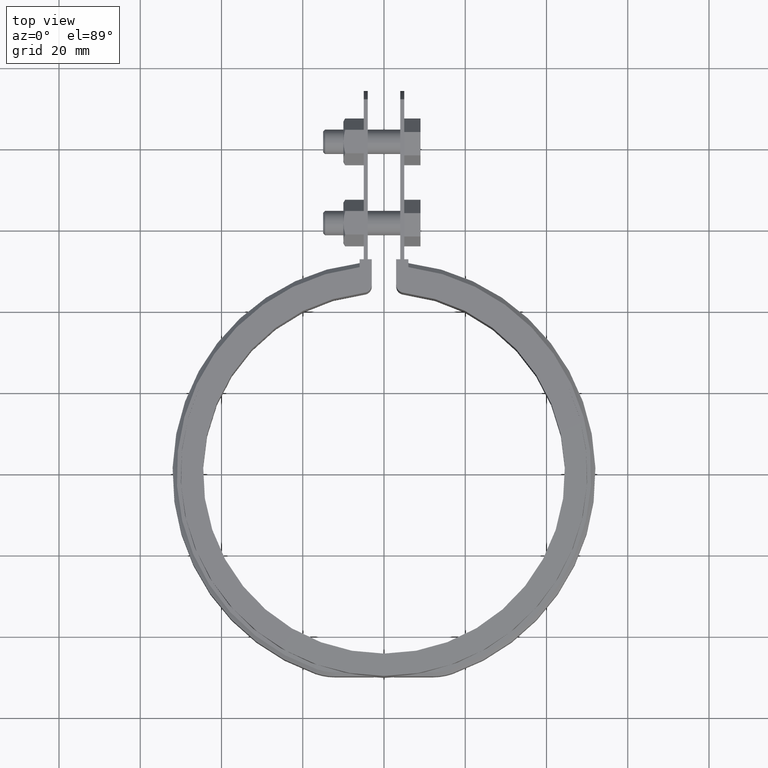
[diagram: clean part render]
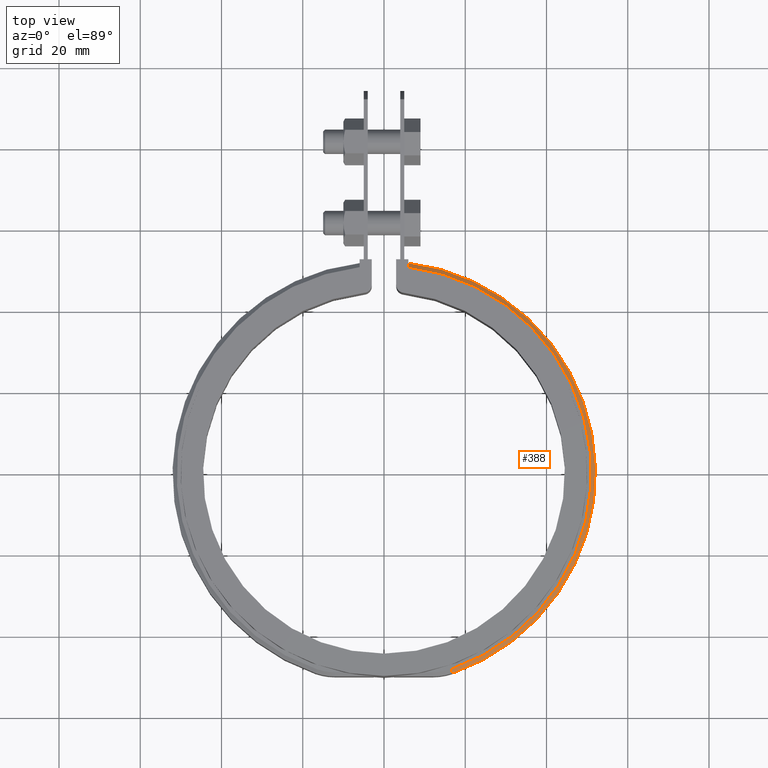
[diagram: same view with one face highlighted and labeled with its STEP entity id]
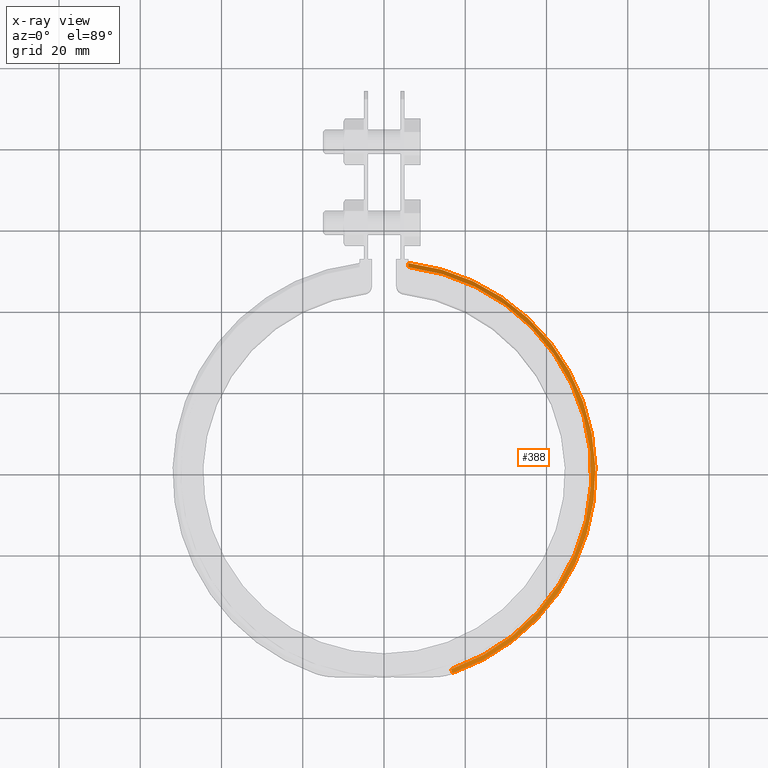
[diagram: x-ray of the same camera — body ghosted, the highlighted face saturated]
A machine part, top view. The second image highlights one B-rep face of the part: STEP entity #388.
The next image is the same camera in x-ray: the body ghosted, the highlighted face saturated — about 0% of this face is hidden behind the body in this view.
In plain terms, the highlighted conical surface has half-angle 45 deg.
Its self-contained STEP definition (entity closure, byte-faithful):
#388 = ADVANCED_FACE( '', ( #668 ), #669, .T. );
#668 = FACE_OUTER_BOUND( '', #1638, .T. );
#669 = CONICAL_SURFACE( '', #1639, 52.0500000000000, 0.785398163397452 );
#1638 = EDGE_LOOP( '', ( #3034, #3035, #3036, #3037 ) );
#1639 = AXIS2_PLACEMENT_3D( '', #3038, #3039, #3040 );
#3034 = ORIENTED_EDGE( '', *, *, #4258, .F. );
#3035 = ORIENTED_EDGE( '', *, *, #4259, .F. );
#3036 = ORIENTED_EDGE( '', *, *, #4260, .F. );
#3037 = ORIENTED_EDGE( '', *, *, #4261, .F. );
#3038 = CARTESIAN_POINT( '', ( 0.000000000000000, -1.38777878078145E-014, 7.50000000000000 ) );
#3039 = DIRECTION( '', ( 0.000000000000000, 0.000000000000000, -1.00000000000000 ) );
#3040 = DIRECTION( '', ( -1.00000000000000, 0.000000000000000, 0.000000000000000 ) );
#4258 = EDGE_CURVE( '', #4932, #4933, #4934, .T. );
#4259 = EDGE_CURVE( '', #4935, #4932, #4936, .T. );
#4260 = EDGE_CURVE( '', #4937, #4935, #4938, .T. );
#4261 = EDGE_CURVE( '', #4933, #4937, #4939, .F. );
#4932 = VERTEX_POINT( '', #7562 );
#4933 = VERTEX_POINT( '', #7563 );
#4934 = B_SPLINE_CURVE_WITH_KNOTS( '', 3, ( #7564, #7565, #7566, #7567 ), .UNSPECIFIED., .F., .F., ( 4, 4 ), ( 1.73472347597681E-018, 0.00141906111018388 ), .UNSPECIFIED. );
#4935 = VERTEX_POINT( '', #7568 );
#4936 = CIRCLE( '', #7569, 51.0500000000000 );
#4937 = VERTEX_POINT( '', #7570 );
#4938 = LINE( '', #7571, #7572 );
#4939 = CIRCLE( '', #7573, 52.0500000000000 );
#7562 = CARTESIAN_POINT( '', ( 6.00000000000001, 50.6961783569531, 8.49999999999999 ) );
#7563 = CARTESIAN_POINT( '', ( 6.00000000000001, 51.7030221553828, 7.50000000000001 ) );
#7564 = CARTESIAN_POINT( '', ( 6.00000000000001, 50.6961783569531, 8.50000000000000 ) );
#7565 = CARTESIAN_POINT( '', ( 6.00000000000001, 51.0318153765527, 8.16668924174696 ) );
#7566 = CARTESIAN_POINT( '', ( 6.00000000000001, 51.3674295438524, 7.83335547030038 ) );
#7567 = CARTESIAN_POINT( '', ( 6.00000000000001, 51.7030221553827, 7.50000000000000 ) );
#7568 = CARTESIAN_POINT( '', ( 16.5458912025651, -48.2942645074224, 8.50000000000000 ) );
#7569 = AXIS2_PLACEMENT_3D( '', #8510, #8511, #8512 );
#7570 = CARTESIAN_POINT( '', ( 16.8700026854753, -49.2402834008097, 7.50000000000001 ) );
#7571 = CARTESIAN_POINT( '', ( 16.8700026854753, -49.2402834008097, 7.50000000000000 ) );
#7572 = VECTOR( '', #8513, 1000.00000000000 );
#7573 = AXIS2_PLACEMENT_3D( '', #8514, #8515, #8516 );
#8510 = CARTESIAN_POINT( '', ( 0.000000000000000, -1.38777878078145E-014, 8.50000000000000 ) );
#8511 = DIRECTION( '', ( 0.000000000000000, 0.000000000000000, 1.00000000000000 ) );
#8512 = DIRECTION( '', ( 1.00000000000000, 0.000000000000000, 0.000000000000000 ) );
#8513 = DIRECTION( '', ( -0.229181427426222, 0.668936374644766, 0.707106781186545 ) );
#8514 = CARTESIAN_POINT( '', ( 0.000000000000000, -1.38777878078145E-014, 7.50000000000000 ) );
#8515 = DIRECTION( '', ( 0.000000000000000, 0.000000000000000, 1.00000000000000 ) );
#8516 = DIRECTION( '', ( 1.00000000000000, 0.000000000000000, 0.000000000000000 ) );